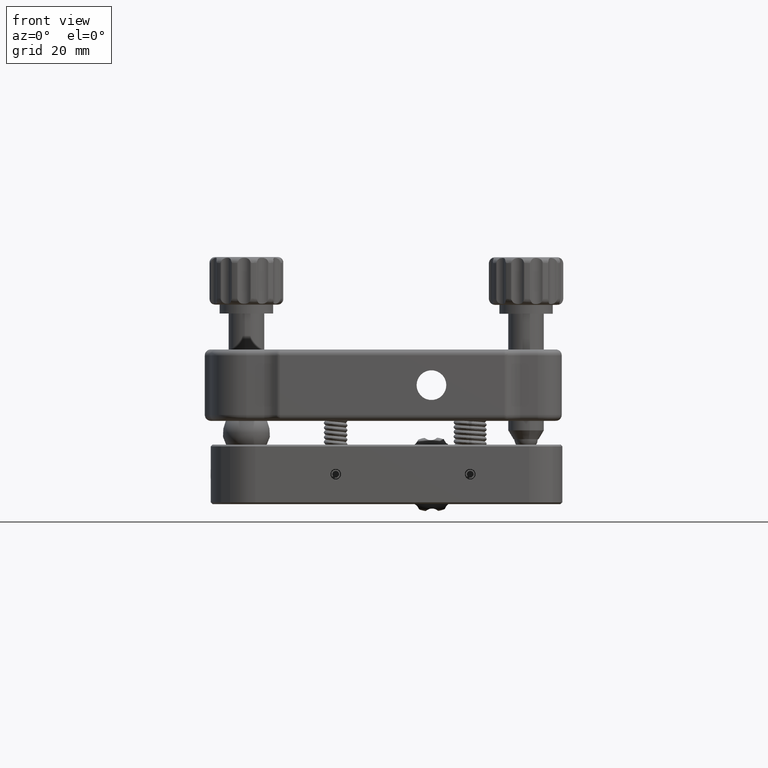
[diagram: clean part render]
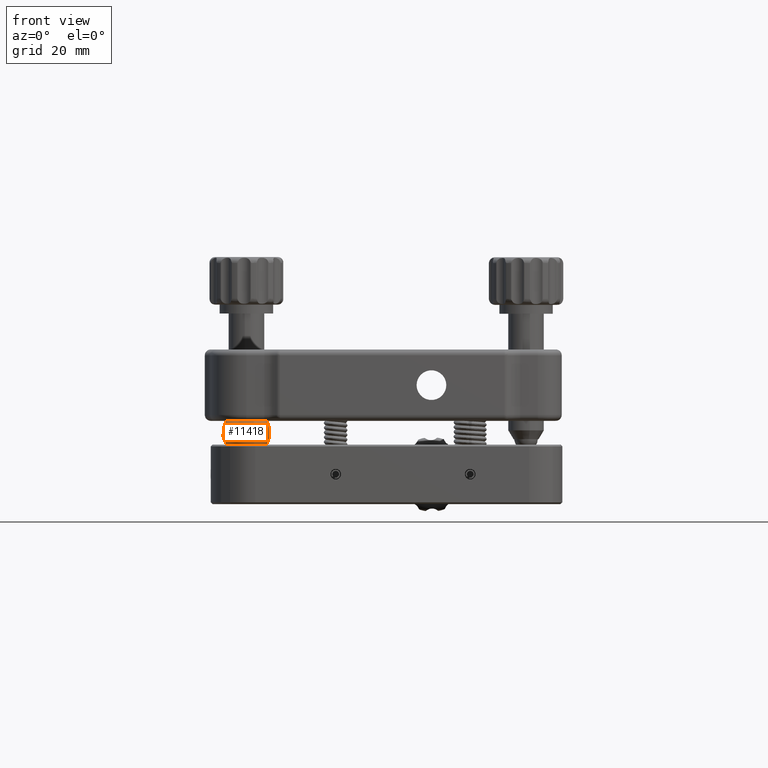
[diagram: same view with one face highlighted and labeled with its STEP entity id]
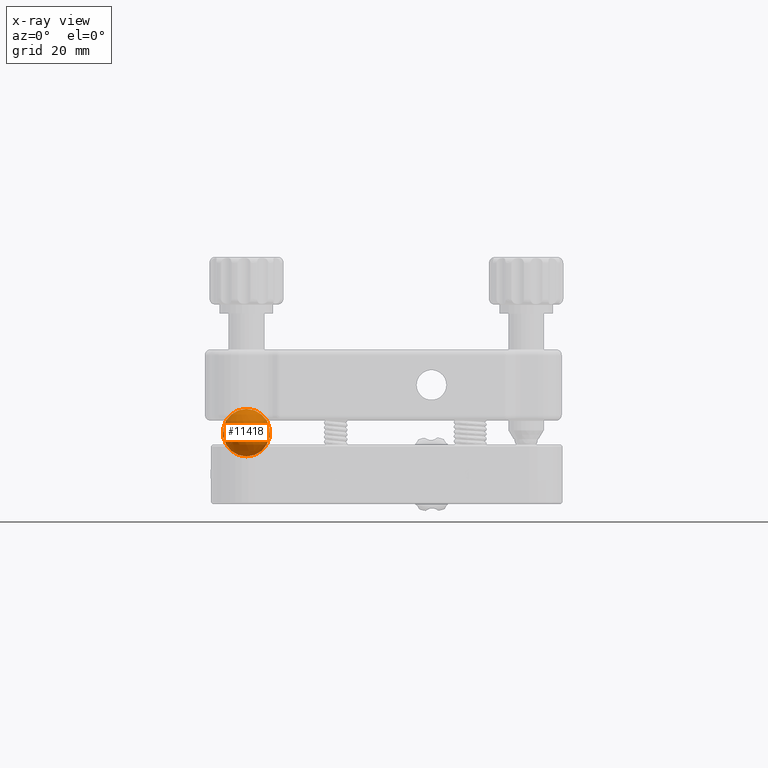
[diagram: x-ray of the same camera — body ghosted, the highlighted face saturated]
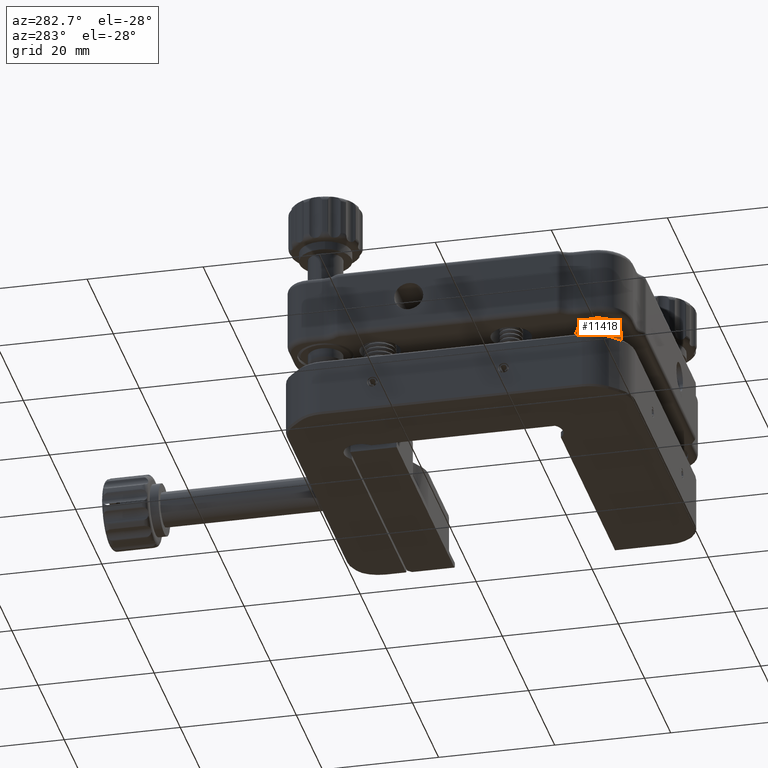
[diagram: same view with one face highlighted and labeled with its STEP entity id]
A machine part, front view. The second image highlights one B-rep face of the part: STEP entity #11418.
The next image is the same camera in x-ray: the body ghosted, the highlighted face saturated — about 0% of this face is hidden behind the body in this view.
A second angle (auxiliary view) of the same face is appended — the face is thin or edge-on in the first view.
In plain terms, the highlighted spherical surface has radius 4 mm.
Its self-contained STEP definition (entity closure, byte-faithful):
#7304 = SPHERICAL_SURFACE ( 'NONE', #23733, 4.000000000000000000 ) ;
#11356 = DIRECTION ( 'NONE',  ( 2.818925648462311923E-15, 1.000000000000000000, 4.336808689942018722E-16 ) ) ;
#11418 = ADVANCED_FACE ( 'NONE', ( ), #7304, .T. ) ;
#20423 = DIRECTION ( 'NONE',  ( 9.369561891591502420E-16, 4.336808689941992098E-16, -1.000000000000000000 ) ) ;
#20663 = CARTESIAN_POINT ( 'NONE',  ( 7.000000000000001776, 7.000000000000007105, -8.000000000000000000 ) ) ;
#23733 = AXIS2_PLACEMENT_3D ( 'NONE', #20663, #20423, #11356 ) ;